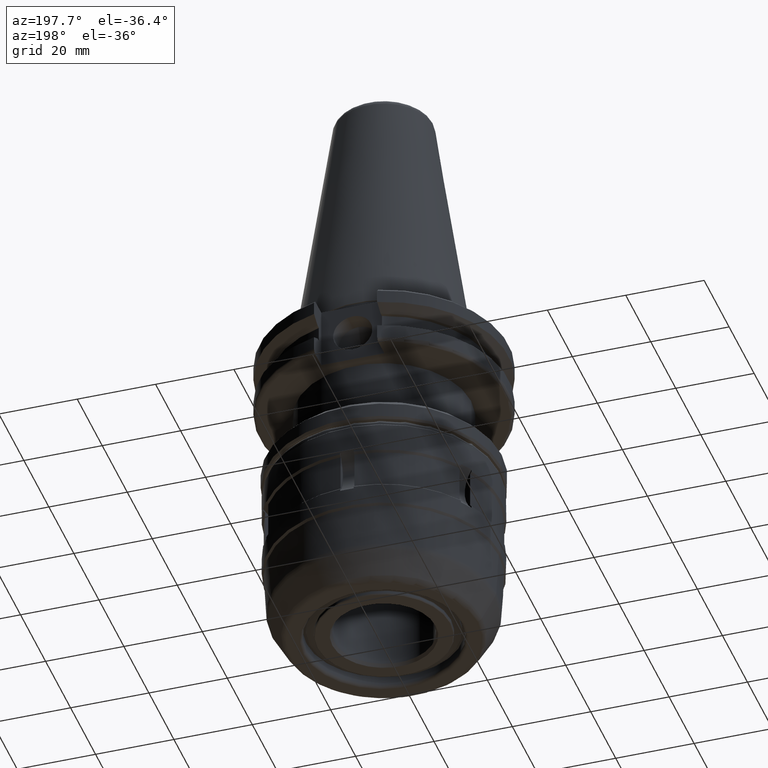
[diagram: clean part render]
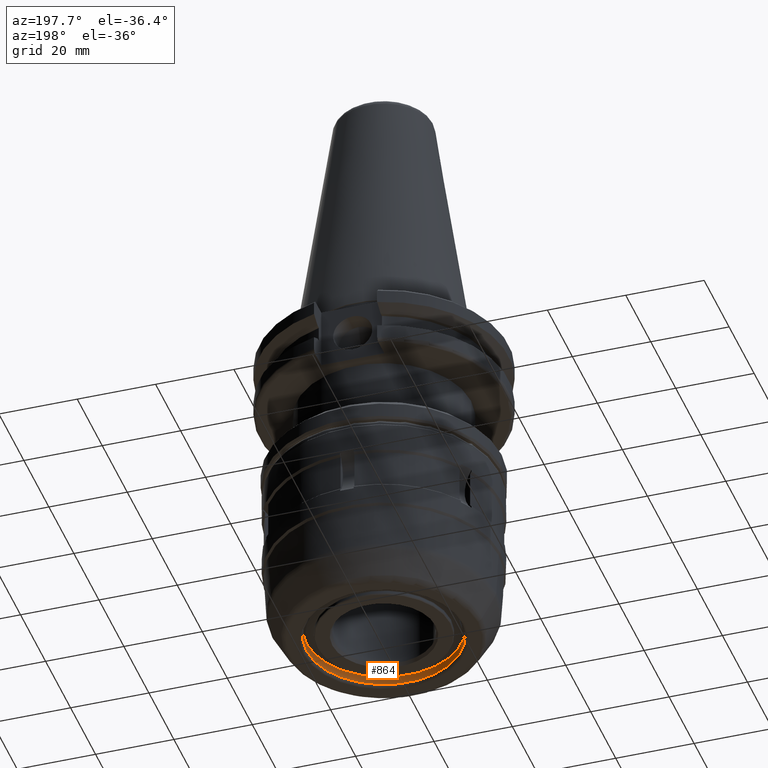
[diagram: same view with one face highlighted and labeled with its STEP entity id]
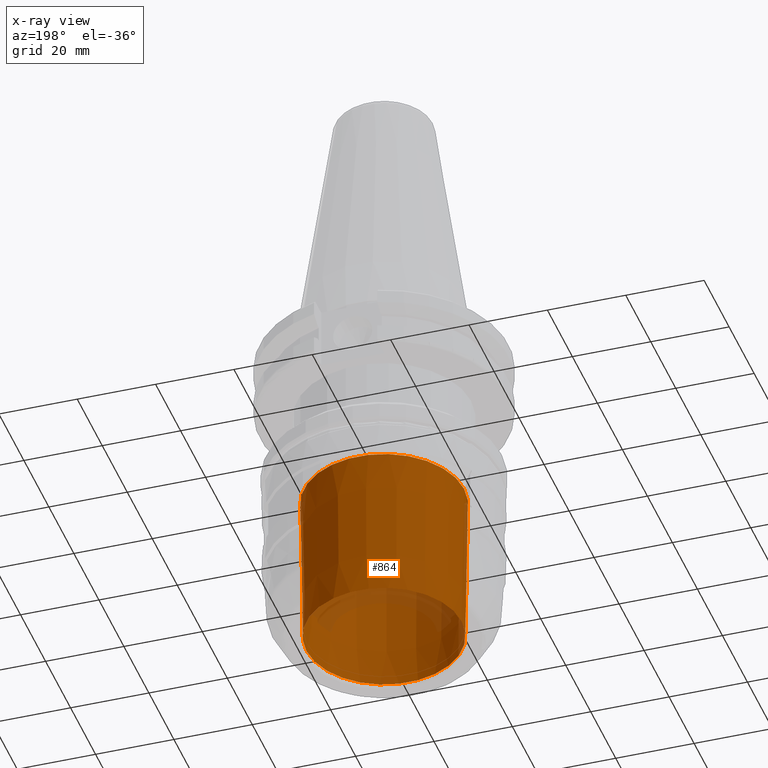
[diagram: x-ray of the same camera — body ghosted, the highlighted face saturated]
A machine part, auxiliary view. The second image highlights one B-rep face of the part: STEP entity #864.
The next image is the same camera in x-ray: the body ghosted, the highlighted face saturated — about 9% of this face is hidden behind the body in this view.
In plain terms, the highlighted conical surface has half-angle 0.896 deg.
Its self-contained STEP definition (entity closure, byte-faithful):
#374 = AXIS2_PLACEMENT_3D ( 'NONE', #1828, #2883, #1783 ) ;
#688 = FACE_BOUND ( 'NONE', #2162, .T. ) ;
#823 = CARTESIAN_POINT ( 'NONE',  ( -19.81299999999999883, 1.483994170672545651E-15, -85.18399999999998329 ) ) ;
#864 = ADVANCED_FACE ( 'NONE', ( #688, #2124 ), #3316, .F. ) ;
#1225 = DIRECTION ( 'NONE',  ( -1.000000000000000000, 0.000000000000000000, 0.000000000000000000 ) ) ;
#1450 = DIRECTION ( 'NONE',  ( 0.000000000000000000, 0.000000000000000000, 1.000000000000000000 ) ) ;
#1492 = VERTEX_POINT ( 'NONE', #2923 ) ;
#1705 = DIRECTION ( 'NONE',  ( 1.000000000000000000, 0.000000000000000000, 0.000000000000000000 ) ) ;
#1783 = DIRECTION ( 'NONE',  ( -1.000000000000000000, 0.000000000000000000, 0.000000000000000000 ) ) ;
#1828 = CARTESIAN_POINT ( 'NONE',  ( 0.000000000000000000, 1.483994170672545651E-15, -85.18399999999998329 ) ) ;
#1873 = ORIENTED_EDGE ( 'NONE', *, *, #2226, .F. ) ;
#1912 = CARTESIAN_POINT ( 'NONE',  ( 0.000000000000000000, 1.483994170672545651E-15, -45.20000000000002416 ) ) ;
#2076 = EDGE_LOOP ( 'NONE', ( #1873 ) ) ;
#2124 = FACE_OUTER_BOUND ( 'NONE', #2076, .T. ) ;
#2162 = EDGE_LOOP ( 'NONE', ( #3924 ) ) ;
#2226 = EDGE_CURVE ( 'NONE', #1492, #1492, #4481, .T. ) ;
#2393 = CIRCLE ( 'NONE', #374, 19.81299999999999883 ) ;
#2477 = AXIS2_PLACEMENT_3D ( 'NONE', #1912, #4057, #1225 ) ;
#2577 = EDGE_CURVE ( 'NONE', #2944, #2944, #2393, .T. ) ;
#2883 = DIRECTION ( 'NONE',  ( -0.000000000000000000, -0.000000000000000000, -1.000000000000000000 ) ) ;
#2923 = CARTESIAN_POINT ( 'NONE',  ( -20.43799999999998462, 1.483994170672545651E-15, -45.20000000000002416 ) ) ;
#2944 = VERTEX_POINT ( 'NONE', #823 ) ;
#3316 = CONICAL_SURFACE ( 'NONE', #3540, 20.43799999999998462, 0.01562997959474937693 ) ;
#3540 = AXIS2_PLACEMENT_3D ( 'NONE', #3546, #1450, #1705 ) ;
#3546 = CARTESIAN_POINT ( 'NONE',  ( 0.000000000000000000, 1.483994170672545651E-15, -45.20000000000002416 ) ) ;
#3924 = ORIENTED_EDGE ( 'NONE', *, *, #2577, .T. ) ;
#4057 = DIRECTION ( 'NONE',  ( -0.000000000000000000, -0.000000000000000000, -1.000000000000000000 ) ) ;
#4481 = CIRCLE ( 'NONE', #2477, 20.43799999999998462 ) ;